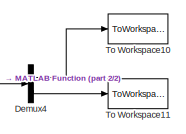
[diagram: root canvas - part 1/2, top center region]
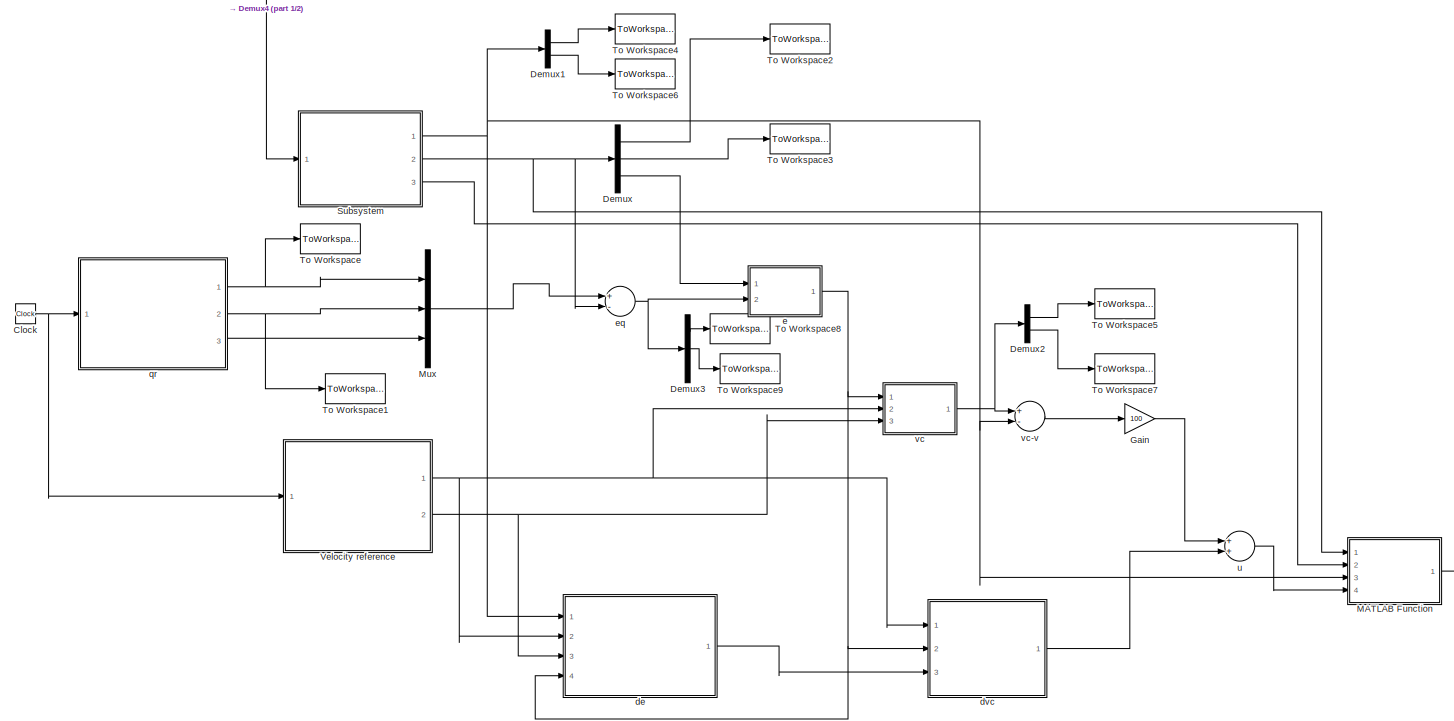
[diagram: root canvas - part 2/2, most of the canvas]
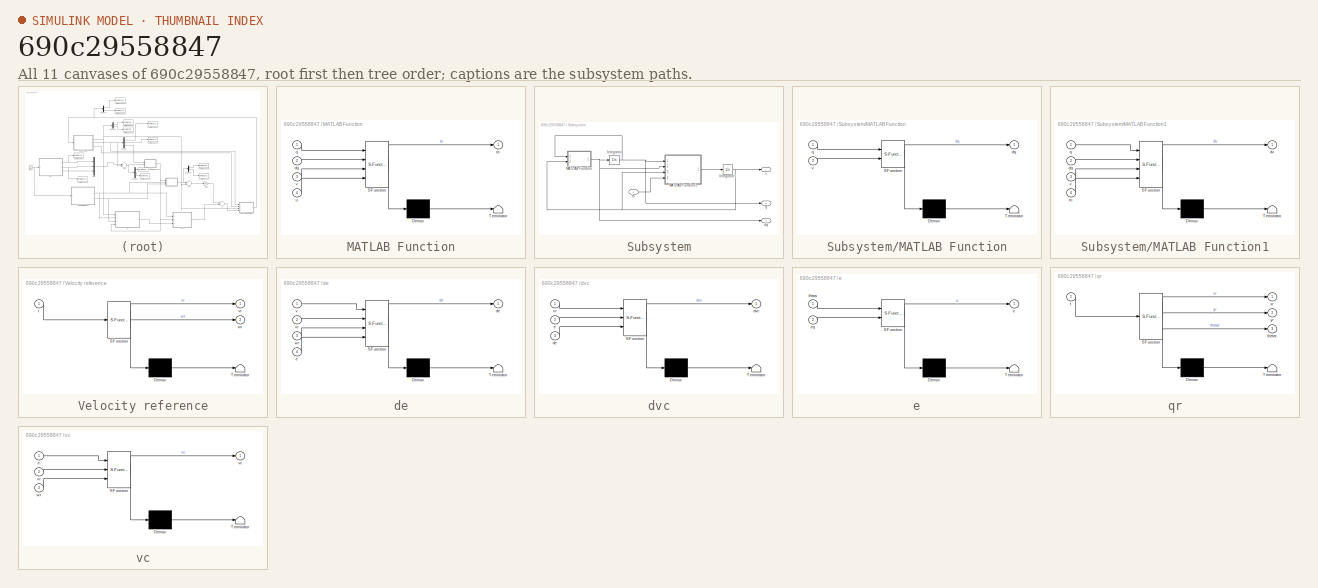
[diagram: thumbnail index - all 11 canvases of the model, root first then tree order]
MODEL slx_690c29558847
KIND model
CONFIG AbsTol = auto
CONFIG EnableMultiTasking = off
CONFIG FixedStep = 0.0012
CONFIG MaxStep = auto
CONFIG MinStep = auto
CONFIG RelTol = 1e-3
CONFIG SampleTimeConstraint = Unconstrained
CONFIG Solver = FixedStepAuto
CONFIG SolverName = FixedStepAuto
CONFIG StartTime = 0.0
CONFIG StopTime = 12
BLOCK [Clock] Clock
BLOCK [Demux] Demux
  DisplayOption = bar
  Outputs = 3
  Ports = [1, 3]
BLOCK [Demux] Demux1
  DisplayOption = bar
  Outputs = 2
  Ports = [1, 2]
BLOCK [Demux] Demux2
  DisplayOption = bar
  Outputs = 2
  Ports = [1, 2]
BLOCK [Demux] Demux3
  DisplayOption = bar
  Outputs = 3
  Ports = [1, 3]
BLOCK [Demux] Demux4
  DisplayOption = bar
  Outputs = 2
  Ports = [1, 2]
BLOCK [Gain] Gain
  Gain = 100
  OutDataTypeStr = Inherit: Inherit via internal rule
  ParamDataTypeStr = Inherit: Inherit via internal rule
  SaturateOnIntegerOverflow = off
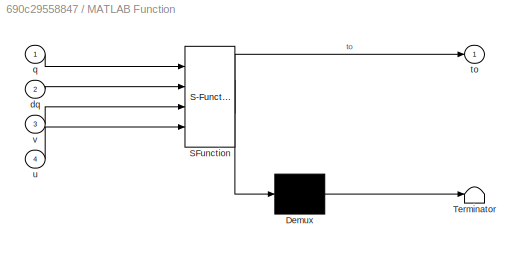
BLOCK [SubSystem] MATLAB Function
  ErrorFcn = Stateflow.Translate.translate
  PermitHierarchicalResolution = ExplicitOnly
  Ports = [4, 1]
  RequestExecContextInheritance = off
  SFBlockType = MATLAB Function
  TreatAsAtomicUnit = on
BLOCK [Demux] MATLAB Function/ Demux 
  Outputs = 1
  Ports = [1, 1]
BLOCK [S-Function] MATLAB Function/ SFunction 
  EnableBusSupport = on
  FunctionName = sf_sfun
  PortCounts = [4 2]
  Ports = [4, 2]
  SFcnIsStateOwnerBlock = off
  SFunctionDeploymentMode = off
  Tag = Stateflow S-Function controlofanonholonomicmobile 9
BLOCK [Terminator] MATLAB Function/ Terminator 
BLOCK [Inport] MATLAB Function/dq
  IconDisplay = Port number
  Port = 2
BLOCK [Inport] MATLAB Function/q
  IconDisplay = Port number
BLOCK [Outport] MATLAB Function/to
  IconDisplay = Port number
BLOCK [Inport] MATLAB Function/u
  IconDisplay = Port number
  Port = 4
BLOCK [Inport] MATLAB Function/v
  IconDisplay = Port number
  Port = 3
BLOCK [Mux] Mux
  DisplayOption = bar
  Inputs = 3
  Ports = [3, 1]
BLOCK [SubSystem] Subsystem
  Ports = [1, 3]
  RequestExecContextInheritance = off
BLOCK [Integrator] Subsystem/Integrator
  InitialCondition = [1.15;0.85;0]
  Ports = [1, 1]
BLOCK [Integrator] Subsystem/Integrator1
  InitialCondition = [0;0]
  Ports = [1, 1]
BLOCK [SubSystem] Subsystem/MATLAB Function
  ErrorFcn = Stateflow.Translate.translate
  PermitHierarchicalResolution = ExplicitOnly
  Ports = [2, 1]
  RequestExecContextInheritance = off
  SFBlockType = MATLAB Function
  TreatAsAtomicUnit = on
BLOCK [Demux] Subsystem/MATLAB Function/ Demux 
  Outputs = 1
  Ports = [1, 1]
BLOCK [S-Function] Subsystem/MATLAB Function/ SFunction 
  EnableBusSupport = on
  FunctionName = sf_sfun
  PortCounts = [2 2]
  Ports = [2, 2]
  SFcnIsStateOwnerBlock = off
  SFunctionDeploymentMode = off
  Tag = Stateflow S-Function controlofanonholonomicmobile 2
BLOCK [Terminator] Subsystem/MATLAB Function/ Terminator 
BLOCK [Outport] Subsystem/MATLAB Function/dq
  IconDisplay = Port number
BLOCK [Inport] Subsystem/MATLAB Function/q
  IconDisplay = Port number
BLOCK [Inport] Subsystem/MATLAB Function/v
  IconDisplay = Port number
  Port = 2
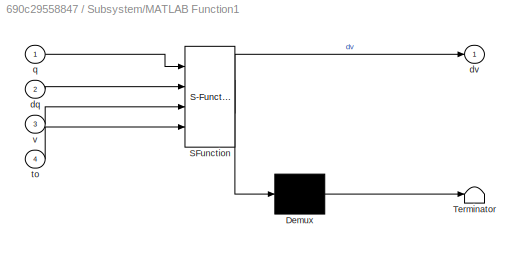
BLOCK [SubSystem] Subsystem/MATLAB Function1
  ErrorFcn = Stateflow.Translate.translate
  PermitHierarchicalResolution = ExplicitOnly
  Ports = [4, 1]
  RequestExecContextInheritance = off
  SFBlockType = MATLAB Function
  TreatAsAtomicUnit = on
BLOCK [Demux] Subsystem/MATLAB Function1/ Demux 
  Outputs = 1
  Ports = [1, 1]
BLOCK [S-Function] Subsystem/MATLAB Function1/ SFunction 
  EnableBusSupport = on
  FunctionName = sf_sfun
  PortCounts = [4 2]
  Ports = [4, 2]
  SFcnIsStateOwnerBlock = off
  SFunctionDeploymentMode = off
  Tag = Stateflow S-Function controlofanonholonomicmobile 1
BLOCK [Terminator] Subsystem/MATLAB Function1/ Terminator 
BLOCK [Inport] Subsystem/MATLAB Function1/dq
  IconDisplay = Port number
  Port = 2
BLOCK [Outport] Subsystem/MATLAB Function1/dv
  IconDisplay = Port number
BLOCK [Inport] Subsystem/MATLAB Function1/q
  IconDisplay = Port number
BLOCK [Inport] Subsystem/MATLAB Function1/to
  IconDisplay = Port number
  Port = 4
BLOCK [Inport] Subsystem/MATLAB Function1/v
  IconDisplay = Port number
  Port = 3
BLOCK [Outport] Subsystem/dq
  IconDisplay = Port number
  Port = 3
BLOCK [Outport] Subsystem/q
  IconDisplay = Port number
  Port = 2
BLOCK [Inport] Subsystem/to
  IconDisplay = Port number
BLOCK [Outport] Subsystem/v
  IconDisplay = Port number
BLOCK [ToWorkspace] To Workspace
  FixptAsFi = on
  MaxDataPoints = inf
  Ports = [1]
  SampleTime = -1
  Save2DSignal = 3-D array (concatenate along third dimension)
  VariableName = xr
BLOCK [ToWorkspace] To Workspace1
  FixptAsFi = on
  MaxDataPoints = inf
  Ports = [1]
  SampleTime = -1
  Save2DSignal = 3-D array (concatenate along third dimension)
  VariableName = yr
BLOCK [ToWorkspace] To Workspace10
  FixptAsFi = on
  MaxDataPoints = inf
  Ports = [1]
  SampleTime = -1
  Save2DSignal = 3-D array (concatenate along third dimension)
  VariableName = tor
BLOCK [ToWorkspace] To Workspace11
  FixptAsFi = on
  MaxDataPoints = inf
  Ports = [1]
  SampleTime = -1
  Save2DSignal = 3-D array (concatenate along third dimension)
  VariableName = tol
BLOCK [ToWorkspace] To Workspace2
  FixptAsFi = on
  MaxDataPoints = inf
  Ports = [1]
  SampleTime = -1
  Save2DSignal = 3-D array (concatenate along third dimension)
  VariableName = x
BLOCK [ToWorkspace] To Workspace3
  FixptAsFi = on
  MaxDataPoints = inf
  Ports = [1]
  SampleTime = -1
  Save2DSignal = 3-D array (concatenate along third dimension)
  VariableName = y
BLOCK [ToWorkspace] To Workspace4
  FixptAsFi = on
  MaxDataPoints = inf
  Ports = [1]
  SampleTime = -1
  Save2DSignal = 3-D array (concatenate along third dimension)
  VariableName = v
BLOCK [ToWorkspace] To Workspace5
  FixptAsFi = on
  MaxDataPoints = inf
  Ports = [1]
  SampleTime = -1
  Save2DSignal = 3-D array (concatenate along third dimension)
  VariableName = vc
BLOCK [ToWorkspace] To Workspace6
  FixptAsFi = on
  MaxDataPoints = inf
  Ports = [1]
  SampleTime = -1
  Save2DSignal = 3-D array (concatenate along third dimension)
  VariableName = w
BLOCK [ToWorkspace] To Workspace7
  FixptAsFi = on
  MaxDataPoints = inf
  Ports = [1]
  SampleTime = -1
  Save2DSignal = 3-D array (concatenate along third dimension)
  VariableName = wc
BLOCK [ToWorkspace] To Workspace8
  FixptAsFi = on
  MaxDataPoints = inf
  Ports = [1]
  SampleTime = -1
  Save2DSignal = 3-D array (concatenate along third dimension)
  VariableName = xe
BLOCK [ToWorkspace] To Workspace9
  FixptAsFi = on
  MaxDataPoints = inf
  Ports = [1]
  SampleTime = -1
  Save2DSignal = 3-D array (concatenate along third dimension)
  VariableName = ye
BLOCK [SubSystem] Velocity reference
  ErrorFcn = Stateflow.Translate.translate
  PermitHierarchicalResolution = ExplicitOnly
  Ports = [1, 2]
  RequestExecContextInheritance = off
  SFBlockType = MATLAB Function
  TreatAsAtomicUnit = on
BLOCK [Demux] Velocity reference/ Demux 
  Outputs = 1
  Ports = [1, 1]
BLOCK [S-Function] Velocity reference/ SFunction 
  EnableBusSupport = on
  FunctionName = sf_sfun
  PortCounts = [1 3]
  Ports = [1, 3]
  SFcnIsStateOwnerBlock = off
  SFunctionDeploymentMode = off
  Tag = Stateflow S-Function controlofanonholonomicmobile 5
BLOCK [Terminator] Velocity reference/ Terminator 
BLOCK [Inport] Velocity reference/t
  IconDisplay = Port number
BLOCK [Outport] Velocity reference/vr
  IconDisplay = Port number
BLOCK [Outport] Velocity reference/wr
  IconDisplay = Port number
  Port = 2
BLOCK [SubSystem] de
  ErrorFcn = Stateflow.Translate.translate
  PermitHierarchicalResolution = ExplicitOnly
  Ports = [4, 1]
  RequestExecContextInheritance = off
  SFBlockType = MATLAB Function
  TreatAsAtomicUnit = on
BLOCK [Demux] de/ Demux 
  Outputs = 1
  Ports = [1, 1]
BLOCK [S-Function] de/ SFunction 
  EnableBusSupport = on
  FunctionName = sf_sfun
  PortCounts = [4 2]
  Ports = [4, 2]
  SFcnIsStateOwnerBlock = off
  SFunctionDeploymentMode = off
  Tag = Stateflow S-Function controlofanonholonomicmobile 7
BLOCK [Terminator] de/ Terminator 
BLOCK [Outport] de/de
  IconDisplay = Port number
BLOCK [Inport] de/e
  IconDisplay = Port number
  Port = 4
BLOCK [Inport] de/v
  IconDisplay = Port number
BLOCK [Inport] de/vr
  IconDisplay = Port number
  Port = 2
BLOCK [Inport] de/wr
  IconDisplay = Port number
  Port = 3
BLOCK [SubSystem] dvc
  ErrorFcn = Stateflow.Translate.translate
  PermitHierarchicalResolution = ExplicitOnly
  Ports = [3, 1]
  RequestExecContextInheritance = off
  SFBlockType = MATLAB Function
  TreatAsAtomicUnit = on
BLOCK [Demux] dvc/ Demux 
  Outputs = 1
  Ports = [1, 1]
BLOCK [S-Function] dvc/ SFunction 
  EnableBusSupport = on
  FunctionName = sf_sfun
  PortCounts = [3 2]
  Ports = [3, 2]
  SFcnIsStateOwnerBlock = off
  SFunctionDeploymentMode = off
  Tag = Stateflow S-Function controlofanonholonomicmobile 8
BLOCK [Terminator] dvc/ Terminator 
BLOCK [Inport] dvc/de
  IconDisplay = Port number
  Port = 3
BLOCK [Outport] dvc/dvc
  IconDisplay = Port number
BLOCK [Inport] dvc/e
  IconDisplay = Port number
  Port = 2
BLOCK [Inport] dvc/vr
  IconDisplay = Port number
BLOCK [SubSystem] e
  ErrorFcn = Stateflow.Translate.translate
  PermitHierarchicalResolution = ExplicitOnly
  Ports = [2, 1]
  RequestExecContextInheritance = off
  SFBlockType = MATLAB Function
  TreatAsAtomicUnit = on
BLOCK [Demux] e/ Demux 
  Outputs = 1
  Ports = [1, 1]
BLOCK [S-Function] e/ SFunction 
  EnableBusSupport = on
  FunctionName = sf_sfun
  PortCounts = [2 2]
  Ports = [2, 2]
  SFcnIsStateOwnerBlock = off
  SFunctionDeploymentMode = off
  Tag = Stateflow S-Function controlofanonholonomicmobile 4
BLOCK [Terminator] e/ Terminator 
BLOCK [Outport] e/e
  IconDisplay = Port number
BLOCK [Inport] e/eq
  IconDisplay = Port number
  Port = 2
BLOCK [Inport] e/theta
  IconDisplay = Port number
BLOCK [Sum] eq
  InputSameDT = off
  Inputs = +-
  OutDataTypeStr = Inherit: Inherit via internal rule
  Ports = [2, 1]
  SaturateOnIntegerOverflow = off
BLOCK [SubSystem] qr
  ErrorFcn = Stateflow.Translate.translate
  PermitHierarchicalResolution = ExplicitOnly
  Ports = [1, 3]
  RequestExecContextInheritance = off
  SFBlockType = MATLAB Function
  TreatAsAtomicUnit = on
BLOCK [Demux] qr/ Demux 
  Outputs = 1
  Ports = [1, 1]
BLOCK [S-Function] qr/ SFunction 
  EnableBusSupport = on
  FunctionName = sf_sfun
  PortCounts = [1 4]
  Ports = [1, 4]
  SFcnIsStateOwnerBlock = off
  SFunctionDeploymentMode = off
  Tag = Stateflow S-Function controlofanonholonomicmobile 3
BLOCK [Terminator] qr/ Terminator 
BLOCK [Inport] qr/t
  IconDisplay = Port number
BLOCK [Outport] qr/thetar
  IconDisplay = Port number
  Port = 3
BLOCK [Outport] qr/xr
  IconDisplay = Port number
BLOCK [Outport] qr/yr
  IconDisplay = Port number
  Port = 2
BLOCK [Sum] u
  InputSameDT = off
  OutDataTypeStr = Inherit: Inherit via internal rule
  Ports = [2, 1]
  SaturateOnIntegerOverflow = off
BLOCK [SubSystem] vc
  ErrorFcn = Stateflow.Translate.translate
  PermitHierarchicalResolution = ExplicitOnly
  Ports = [3, 1]
  RequestExecContextInheritance = off
  SFBlockType = MATLAB Function
  TreatAsAtomicUnit = on
BLOCK [Sum] vc-v
  InputSameDT = off
  Inputs = +-
  OutDataTypeStr = Inherit: Inherit via internal rule
  Ports = [2, 1]
  SaturateOnIntegerOverflow = off
BLOCK [Demux] vc/ Demux 
  Outputs = 1
  Ports = [1, 1]
BLOCK [S-Function] vc/ SFunction 
  EnableBusSupport = on
  FunctionName = sf_sfun
  PortCounts = [3 2]
  Ports = [3, 2]
  SFcnIsStateOwnerBlock = off
  SFunctionDeploymentMode = off
  Tag = Stateflow S-Function controlofanonholonomicmobile 6
BLOCK [Terminator] vc/ Terminator 
BLOCK [Inport] vc/e
  IconDisplay = Port number
BLOCK [Outport] vc/vc
  IconDisplay = Port number
BLOCK [Inport] vc/vr
  IconDisplay = Port number
  Port = 2
BLOCK [Inport] vc/wr
  IconDisplay = Port number
  Port = 3
NET Clock:1 -> Velocity reference:1, qr:1
LINE Demux1:1 -> To Workspace4:1
LINE Demux1:2 -> To Workspace6:1
LINE Demux2:1 -> To Workspace5:1
LINE Demux2:2 -> To Workspace7:1
LINE Demux3:1 -> To Workspace8:1
LINE Demux3:2 -> To Workspace9:1
LINE Demux4:1 -> To Workspace10:1
LINE Demux4:2 -> To Workspace11:1
LINE Demux:1 -> To Workspace2:1
LINE Demux:2 -> To Workspace3:1
LINE Demux:3 -> e:1
LINE Gain:1 -> u:1
NET MATLAB Function:1 -> Demux4:1, Subsystem:1
LINE Mux:1 -> eq:1
NET Subsystem/Integrator1:1 -> Subsystem/MATLAB Function1:3, Subsystem/MATLAB Function:2, Subsystem/v:1
NET Subsystem/Integrator:1 -> Subsystem/MATLAB Function1:1, Subsystem/MATLAB Function:1, Subsystem/q:1
LINE Subsystem/MATLAB Function1:1 -> Subsystem/Integrator1:1
NET Subsystem/MATLAB Function:1 -> Subsystem/Integrator:1, Subsystem/MATLAB Function1:2, Subsystem/dq:1
LINE Subsystem/to:1 -> Subsystem/MATLAB Function1:4
NET Subsystem:1 -> Demux1:1, MATLAB Function:3, de:1, vc-v:2
NET Subsystem:2 -> Demux:1, MATLAB Function:1, eq:2
LINE Subsystem:3 -> MATLAB Function:2
NET Velocity reference:1 -> de:2, dvc:1, vc:2
NET Velocity reference:2 -> de:3, vc:3
LINE de:1 -> dvc:3
LINE dvc:1 -> u:2
NET e:1 -> de:4, dvc:2, vc:1
NET eq:1 -> Demux3:1, e:2
NET qr:1 -> Mux:1, To Workspace:1
NET qr:2 -> Mux:2, To Workspace1:1
LINE qr:3 -> Mux:3
LINE u:1 -> MATLAB Function:4
LINE vc-v:1 -> Gain:1
NET vc:1 -> Demux2:1, vc-v:1
note: NET lines group one-source signal fan-out (src -> all destinations, sorted); 1:1 wires keep LINE
CHART Subsystem/MATLAB Function1 states=1 transitions=1
  STATE_LABEL 'eML_blk_kernel()'
  STATE_LABEL 'SCRIPT:\nfunction dv = fcn(q,dq,v,to)\nS=[cos(q(3)) -0.25*sin(q(3));\n    sin(q(3)) 0.25*cos(q(3));\n    0 1];\ndS=[-dq(3)*sin(q(3)) -0.25*dq(3)*cos(q(3));\n    dq(3)*cos(q(3)) -0.25*dq(3)*sin(q(3));\n    0 0];\nM=[1 0 1*0.25*sin(q(3));\n    0 1 -1*0.25*cos(q(3));\n    1*0.25*sin(q(3)) -1*0.25*cos(q(3)) 0.0587];\nV=[0 0 1*0.25*dq(3)*cos(q(3));\n   0 0 1*0.25*dq(3)*sin(q(3));\n   0 0 0];\nB=1/0.1*[cos(q(3)) cos(...<+98ch>'
CHART Subsystem/MATLAB Function states=1 transitions=1
  STATE_LABEL 'eML_blk_kernel()'
  STATE_LABEL 'SCRIPT:\nfunction dq = fcn(q,v)\nS=[cos(q(3)) -0.25*sin(q(3));\n    sin(q(3)) 0.25*cos(q(3));\n    0 1];\ndq=S*v;\nend'
CHART qr states=1 transitions=1
  STATE_LABEL 'eML_blk_kernel()'
  STATE_LABEL 'SCRIPT:\nfunction [xr,yr,thetar] = fcn(t)\nif t<2*sqrt(5)\n    xr=1+1/sqrt(5)*t;\n    yr=1+0.5/sqrt(5)*t;\n    thetar=atan(0.5);\nelse\n    xr=1.66+3*sin(atan(0.5)+0.125*(t-2*sqrt(5)));\n    yr=4.68-3*cos(atan(0.5)+0.125*(t-2*sqrt(5)));\n    thetar=atan(0.5)+0.125*(t-2*sqrt(5));\nend\nend'
CHART e states=1 transitions=1
  STATE_LABEL 'eML_blk_kernel()'
  STATE_LABEL 'SCRIPT:\nfunction e = fcn(theta,eq)\ne=[cos(theta) sin(theta) 0;-sin(theta) cos(theta) 0;0 0 1]*eq;\nend'
CHART Velocity reference states=1 transitions=1
  STATE_LABEL 'eML_blk_kernel()'
  STATE_LABEL 'SCRIPT:\nfunction [vr,wr] = fcn(t)\nif t<2*sqrt(5)\n    vr=0.5;\n    wr=0;\nelse\n    vr=0.375;\n    wr=0.125;\nend\nend'
CHART vc states=1 transitions=1
  STATE_LABEL 'eML_blk_kernel()'
  STATE_LABEL 'SCRIPT:\nfunction vc = fcn(e,vr,wr)\nvc=[vr*cos(e(3))+100*e(1);\n    wr+100*vr*e(2)+100*vr*sin(e(3))];\nend'
CHART de states=1 transitions=1
  STATE_LABEL 'eML_blk_kernel()'
  STATE_LABEL 'SCRIPT:\nfunction de = fcn(v,vr,wr,e)\nde=[v(2)*e(2)-v(1)+vr*cos(e(3));\n    -v(2)*e(1)+vr*sin(e(3));\n    wr-v(2)];\nend'
CHART dvc states=1 transitions=1
  STATE_LABEL 'eML_blk_kernel()'
  STATE_LABEL 'SCRIPT:\nfunction dvc  = fcn(vr,e,de)\ndvc=[100 0 -vr*sin(e(3));\n    0 100*vr 100*vr*cos(e(3))]*de;\nend'
CHART MATLAB Function states=1 transitions=1
  STATE_LABEL 'eML_blk_kernel()'
  STATE_LABEL 'SCRIPT:\nfunction to = fcn(q,dq,v,u)\nS=[cos(q(3)) -0.25*sin(q(3));\n    sin(q(3)) 0.25*cos(q(3));\n    0 1];\ndS=[-dq(3)*sin(q(3)) -0.25*dq(3)*cos(q(3));\n    dq(3)*cos(q(3)) -0.25*dq(3)*sin(q(3));\n    0 0];\nM=[1 0 1*0.25*sin(q(3));\n    0 1 -1*0.25*cos(q(3));\n    1*0.25*sin(q(3)) -1*0.25*cos(q(3)) 0.0587];\nV=[0 0 1*0.25*dq(3)*cos(q(3));\n   0 0 1*0.25*dq(3)*sin(q(3));\n   0 0 0];\nB=1/0.1*[cos(q(3)) cos(q...<+96ch>'
